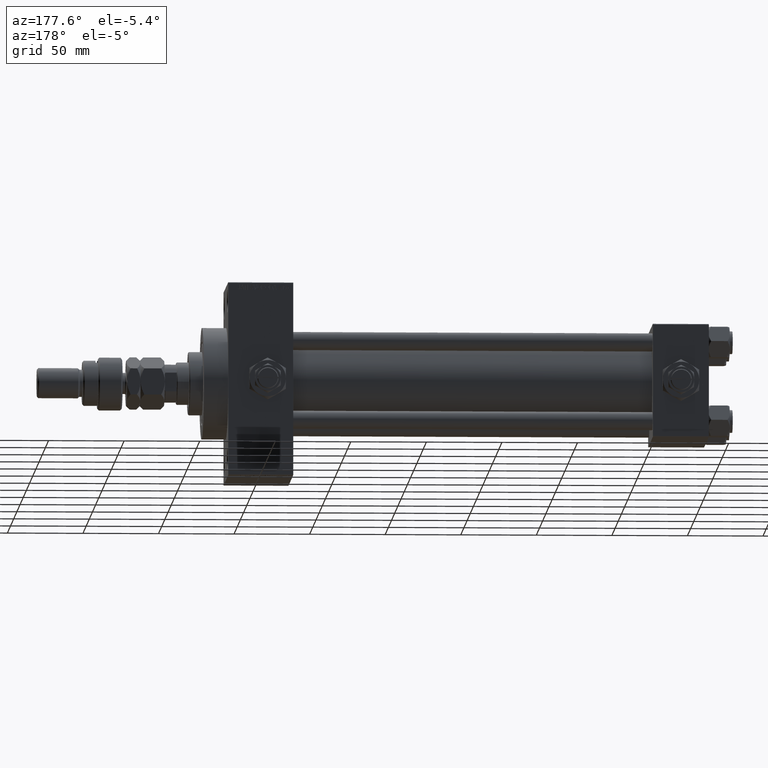
[diagram: clean part render]
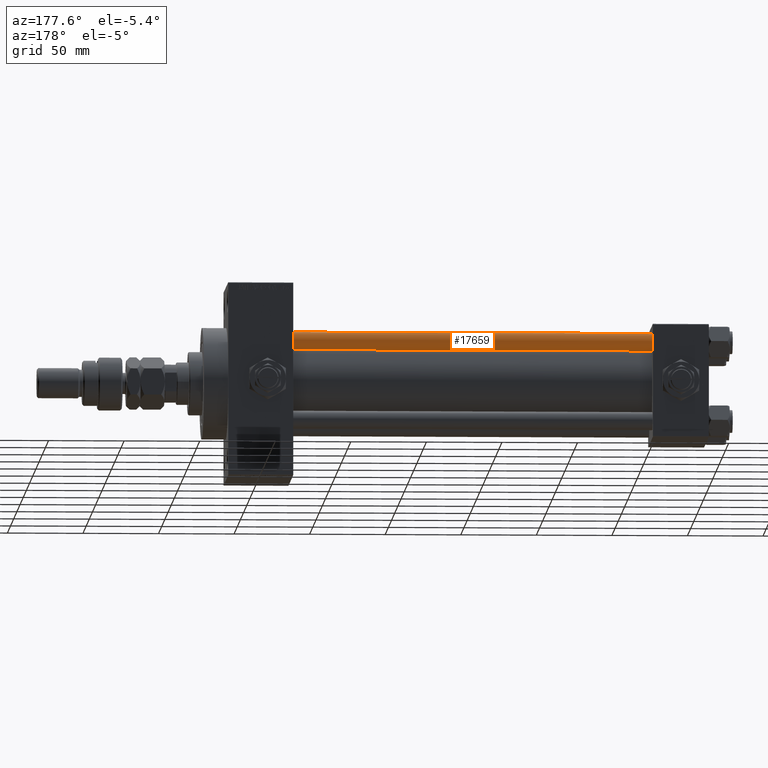
[diagram: same view with one face highlighted and labeled with its STEP entity id]
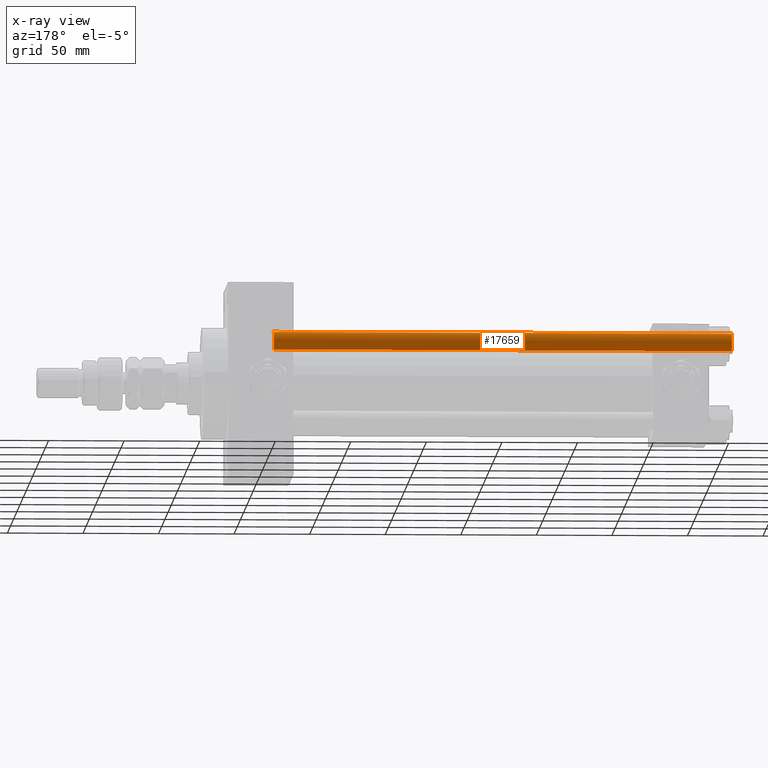
[diagram: x-ray of the same camera — body ghosted, the highlighted face saturated]
A machine part, auxiliary view. The second image highlights one B-rep face of the part: STEP entity #17659.
The next image is the same camera in x-ray: the body ghosted, the highlighted face saturated — about 0% of this face is hidden behind the body in this view.
In plain terms, the highlighted cylindrical surface (edge-blend (fillet) strip) has radius 6 mm, axis along (-1, -0, 0).
Its self-contained STEP definition (entity closure, byte-faithful):
#21 = VERTEX_POINT ( 'NONE', #46654 ) ;
#1619 = EDGE_CURVE ( 'NONE', #21, #31154, #44658, .T. ) ;
#5106 = AXIS2_PLACEMENT_3D ( 'NONE', #28015, #31459, #47321 ) ;
#5185 = ORIENTED_EDGE ( 'NONE', *, *, #15688, .T. ) ;
#5925 = VERTEX_POINT ( 'NONE', #35852 ) ;
#7232 = ORIENTED_EDGE ( 'NONE', *, *, #36430, .F. ) ;
#10731 = DIRECTION ( 'NONE',  ( -1.000000000000000000, 0.000000000000000000, 0.000000000000000000 ) ) ;
#11004 = CARTESIAN_POINT ( 'NONE',  ( 0.000000000000000000, 0.000000000000000000, 304.0000000000000000 ) ) ;
#12852 = AXIS2_PLACEMENT_3D ( 'NONE', #42620, #51594, #14821 ) ;
#13982 = CARTESIAN_POINT ( 'NONE',  ( 6.000000000000000888, 7.347880794884120722E-16, 0.4999999999999449329 ) ) ;
#14821 = DIRECTION ( 'NONE',  ( 1.000000000000000000, 0.000000000000000000, 0.000000000000000000 ) ) ;
#15688 = EDGE_CURVE ( 'NONE', #5925, #21, #35650, .T. ) ;
#16123 = LINE ( 'NONE', #48678, #45573 ) ;
#16352 = DIRECTION ( 'NONE',  ( -0.000000000000000000, -0.000000000000000000, -1.000000000000000000 ) ) ;
#17659 = ADVANCED_FACE ( 'NONE', ( #23463 ), #35356, .T. ) ;
#18911 = EDGE_LOOP ( 'NONE', ( #5185, #43914, #34294, #7232 ) ) ;
#22557 = VECTOR ( 'NONE', #16352, 1000.000000000000000 ) ;
#23463 = FACE_OUTER_BOUND ( 'NONE', #18911, .T. ) ;
#26391 = DIRECTION ( 'NONE',  ( -0.000000000000000000, -0.000000000000000000, -1.000000000000000000 ) ) ;
#28015 = CARTESIAN_POINT ( 'NONE',  ( 0.000000000000000000, 0.000000000000000000, 0.4999999999999449329 ) ) ;
#28280 = CARTESIAN_POINT ( 'NONE',  ( 6.000000000000000888, 7.347880794884120722E-16, 304.0000000000000000 ) ) ;
#29891 = AXIS2_PLACEMENT_3D ( 'NONE', #11004, #26391, #10731 ) ;
#31154 = VERTEX_POINT ( 'NONE', #13982 ) ;
#31459 = DIRECTION ( 'NONE',  ( -0.000000000000000000, -0.000000000000000000, 1.000000000000000000 ) ) ;
#32202 = VERTEX_POINT ( 'NONE', #45685 ) ;
#34294 = ORIENTED_EDGE ( 'NONE', *, *, #38098, .T. ) ;
#35356 = CYLINDRICAL_SURFACE ( 'NONE', #29891, 6.000000000000000888 ) ;
#35650 = CIRCLE ( 'NONE', #12852, 6.000000000000000888 ) ;
#35852 = CARTESIAN_POINT ( 'NONE',  ( -6.000000000000000888, 0.000000000000000000, 303.5000000000000000 ) ) ;
#36430 = EDGE_CURVE ( 'NONE', #5925, #32202, #16123, .T. ) ;
#38076 = CIRCLE ( 'NONE', #5106, 6.000000000000000888 ) ;
#38098 = EDGE_CURVE ( 'NONE', #31154, #32202, #38076, .T. ) ;
#42620 = CARTESIAN_POINT ( 'NONE',  ( 0.000000000000000000, 0.000000000000000000, 303.5000000000000000 ) ) ;
#43914 = ORIENTED_EDGE ( 'NONE', *, *, #1619, .T. ) ;
#44658 = LINE ( 'NONE', #28280, #22557 ) ;
#45573 = VECTOR ( 'NONE', #52363, 1000.000000000000000 ) ;
#45685 = CARTESIAN_POINT ( 'NONE',  ( -6.000000000000000888, 0.000000000000000000, 0.4999999999999449329 ) ) ;
#46654 = CARTESIAN_POINT ( 'NONE',  ( 6.000000000000000888, 7.347880794884120722E-16, 303.5000000000000000 ) ) ;
#47321 = DIRECTION ( 'NONE',  ( 1.000000000000000000, 0.000000000000000000, 0.000000000000000000 ) ) ;
#48678 = CARTESIAN_POINT ( 'NONE',  ( -6.000000000000000888, 0.000000000000000000, 304.0000000000000000 ) ) ;
#51594 = DIRECTION ( 'NONE',  ( 0.000000000000000000, 0.000000000000000000, -1.000000000000000000 ) ) ;
#52363 = DIRECTION ( 'NONE',  ( -0.000000000000000000, -0.000000000000000000, -1.000000000000000000 ) ) ;